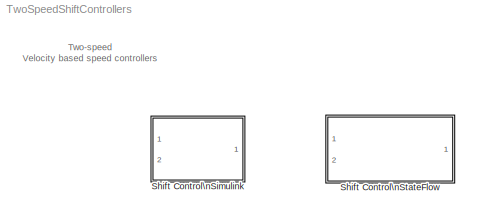
MODEL TwoSpeedShiftControllers
KIND model
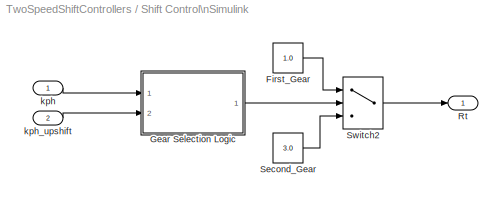
BLOCK [SubSystem] Shift Control\nSimulink
  Ports = [2, 1]
  RequestExecContextInheritance = off
  SID = 1
  Variant = off
BLOCK [Constant] Shift Control\nSimulink/First_Gear
  SID = 4
  Value = 1.0
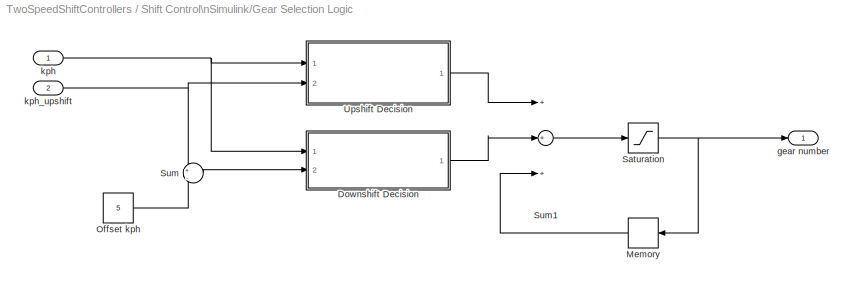
BLOCK [SubSystem] Shift Control\nSimulink/Gear Selection Logic
  Ports = [2, 1]
  RequestExecContextInheritance = off
  SID = 6
  Variant = off
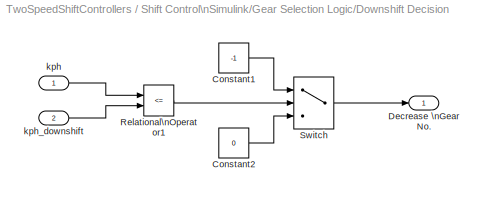
BLOCK [SubSystem] Shift Control\nSimulink/Gear Selection Logic/Downshift Decision
  Ports = [2, 1]
  RequestExecContextInheritance = off
  SID = 9
  Variant = off
BLOCK [Constant] Shift Control\nSimulink/Gear Selection Logic/Downshift Decision/Constant1
  SID = 12
  Value = -1
BLOCK [Constant] Shift Control\nSimulink/Gear Selection Logic/Downshift Decision/Constant2
  SID = 13
  Value = 0
BLOCK [Outport] Shift Control\nSimulink/Gear Selection Logic/Downshift Decision/Decrease \nGear No.
  IconDisplay = Port number
  SID = 16
BLOCK [RelationalOperator] Shift Control\nSimulink/Gear Selection Logic/Downshift Decision/Relational\nOperator1
  InputSameDT = off
  Operator = <=
  OutDataTypeStr = boolean
  Ports = [2, 1]
  SID = 14
BLOCK [Switch] Shift Control\nSimulink/Gear Selection Logic/Downshift Decision/Switch
  SID = 15
  Threshold = 0.5
BLOCK [Inport] Shift Control\nSimulink/Gear Selection Logic/Downshift Decision/kph
  IconDisplay = Port number
  SID = 10
BLOCK [Inport] Shift Control\nSimulink/Gear Selection Logic/Downshift Decision/kph_downshift
  IconDisplay = Port number
  Port = 2
  SID = 11
BLOCK [Memory] Shift Control\nSimulink/Gear Selection Logic/Memory
  SID = 17
BLOCK [Constant] Shift Control\nSimulink/Gear Selection Logic/Offset kph
  SID = 18
  Value = 5
BLOCK [Saturate] Shift Control\nSimulink/Gear Selection Logic/Saturation
  InputPortMap = u0
  LowerLimit = 1
  Ports = [1, 1]
  SID = 19
  UpperLimit = 2
BLOCK [Sum] Shift Control\nSimulink/Gear Selection Logic/Sum
  IconShape = round
  InputSameDT = off
  Inputs = +|-
  OutDataTypeStr = Inherit: Inherit via internal rule
  Ports = [2, 1]
  SID = 20
  SaturateOnIntegerOverflow = off
BLOCK [Sum] Shift Control\nSimulink/Gear Selection Logic/Sum1
  Inputs = +++
  Ports = [3, 1]
  SID = 21
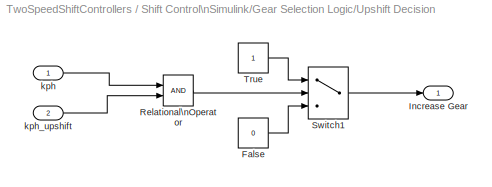
BLOCK [SubSystem] Shift Control\nSimulink/Gear Selection Logic/Upshift Decision
  Ports = [2, 1]
  RequestExecContextInheritance = off
  SID = 22
  Variant = off
BLOCK [Constant] Shift Control\nSimulink/Gear Selection Logic/Upshift Decision/False
  SID = 25
  Value = 0
BLOCK [Outport] Shift Control\nSimulink/Gear Selection Logic/Upshift Decision/Increase Gear
  IconDisplay = Port number
  SID = 29
BLOCK [RelationalOperator] Shift Control\nSimulink/Gear Selection Logic/Upshift Decision/Relational\nOperator
  InputSameDT = off
  OutDataTypeStr = boolean
  Ports = [2, 1]
  SID = 26
BLOCK [Switch] Shift Control\nSimulink/Gear Selection Logic/Upshift Decision/Switch1
  SID = 27
  Threshold = 0.5
BLOCK [Constant] Shift Control\nSimulink/Gear Selection Logic/Upshift Decision/True
  SID = 28
BLOCK [Inport] Shift Control\nSimulink/Gear Selection Logic/Upshift Decision/kph
  IconDisplay = Port number
  SID = 23
BLOCK [Inport] Shift Control\nSimulink/Gear Selection Logic/Upshift Decision/kph_upshift
  IconDisplay = Port number
  Port = 2
  SID = 24
BLOCK [Outport] Shift Control\nSimulink/Gear Selection Logic/gear number
  IconDisplay = Port number
  SID = 30
BLOCK [Inport] Shift Control\nSimulink/Gear Selection Logic/kph
  IconDisplay = Port number
  SID = 7
BLOCK [Inport] Shift Control\nSimulink/Gear Selection Logic/kph_upshift
  IconDisplay = Port number
  Port = 2
  SID = 8
BLOCK [Outport] Shift Control\nSimulink/Rt
  IconDisplay = Port number
  SID = 32
BLOCK [Constant] Shift Control\nSimulink/Second_Gear
  SID = 5
  Value = 3.0
BLOCK [Switch] Shift Control\nSimulink/Switch2
  SID = 31
  Threshold = 1.5
BLOCK [Inport] Shift Control\nSimulink/kph
  IconDisplay = Port number
  SID = 2
BLOCK [Inport] Shift Control\nSimulink/kph_upshift
  IconDisplay = Port number
  Port = 2
  SID = 3
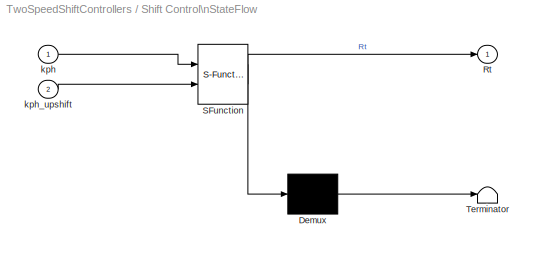
BLOCK [SubSystem] Shift Control\nStateFlow
  ErrorFcn = Stateflow.Translate.translate
  PermitHierarchicalResolution = ExplicitOnly
  Ports = [2, 1]
  RequestExecContextInheritance = off
  SFBlockType = Chart
  SID = 33
  TreatAsAtomicUnit = on
  Variant = off
BLOCK [Demux] Shift Control\nStateFlow/ Demux 
  Outputs = 1
  Ports = [1, 1]
  SID = 33::54
BLOCK [S-Function] Shift Control\nStateFlow/ SFunction 
  EnableBusSupport = off
  FunctionName = sf_sfun
  PortCounts = [2 2]
  Ports = [2, 2]
  SFunctionDeploymentMode = off
  SID = 33::53
  Tag = Stateflow S-Function TwoSpeedShiftControllers 1
BLOCK [Terminator] Shift Control\nStateFlow/ Terminator 
  SID = 33::55
BLOCK [Outport] Shift Control\nStateFlow/Rt
  IconDisplay = Port number
  SID = 33::50
BLOCK [Inport] Shift Control\nStateFlow/kph
  IconDisplay = Port number
  SID = 33::49
BLOCK [Inport] Shift Control\nStateFlow/kph_upshift
  IconDisplay = Port number
  Port = 2
  SID = 33::52
ANNOTATION (root): Two-speed\nVelocity based speed controllers
LINE Shift Control\nSimulink/First_Gear:1 -> Shift Control\nSimulink/Switch2:1
LINE Shift Control\nSimulink/Gear Selection Logic/Downshift Decision/Constant1:1 -> Shift Control\nSimulink/Gear Selection Logic/Downshift Decision/Switch:1
LINE Shift Control\nSimulink/Gear Selection Logic/Downshift Decision/Constant2:1 -> Shift Control\nSimulink/Gear Selection Logic/Downshift Decision/Switch:3
LINE Shift Control\nSimulink/Gear Selection Logic/Downshift Decision/Relational\nOperator1:1 -> Shift Control\nSimulink/Gear Selection Logic/Downshift Decision/Switch:2
LINE Shift Control\nSimulink/Gear Selection Logic/Downshift Decision/Switch:1 -> Shift Control\nSimulink/Gear Selection Logic/Downshift Decision/Decrease \nGear No.:1
LINE Shift Control\nSimulink/Gear Selection Logic/Downshift Decision/kph:1 -> Shift Control\nSimulink/Gear Selection Logic/Downshift Decision/Relational\nOperator1:1
LINE Shift Control\nSimulink/Gear Selection Logic/Downshift Decision/kph_downshift:1 -> Shift Control\nSimulink/Gear Selection Logic/Downshift Decision/Relational\nOperator1:2
LINE Shift Control\nSimulink/Gear Selection Logic/Downshift Decision:1 -> Shift Control\nSimulink/Gear Selection Logic/Sum1:2
LINE Shift Control\nSimulink/Gear Selection Logic/Memory:1 -> Shift Control\nSimulink/Gear Selection Logic/Sum1:3
LINE Shift Control\nSimulink/Gear Selection Logic/Offset kph:1 -> Shift Control\nSimulink/Gear Selection Logic/Sum:2
NET Shift Control\nSimulink/Gear Selection Logic/Saturation:1 -> Shift Control\nSimulink/Gear Selection Logic/Memory:1, Shift Control\nSimulink/Gear Selection Logic/gear number:1
LINE Shift Control\nSimulink/Gear Selection Logic/Sum1:1 -> Shift Control\nSimulink/Gear Selection Logic/Saturation:1
LINE Shift Control\nSimulink/Gear Selection Logic/Sum:1 -> Shift Control\nSimulink/Gear Selection Logic/Downshift Decision:2
LINE Shift Control\nSimulink/Gear Selection Logic/Upshift Decision/False:1 -> Shift Control\nSimulink/Gear Selection Logic/Upshift Decision/Switch1:3
LINE Shift Control\nSimulink/Gear Selection Logic/Upshift Decision/Relational\nOperator:1 -> Shift Control\nSimulink/Gear Selection Logic/Upshift Decision/Switch1:2
LINE Shift Control\nSimulink/Gear Selection Logic/Upshift Decision/Switch1:1 -> Shift Control\nSimulink/Gear Selection Logic/Upshift Decision/Increase Gear:1
LINE Shift Control\nSimulink/Gear Selection Logic/Upshift Decision/True:1 -> Shift Control\nSimulink/Gear Selection Logic/Upshift Decision/Switch1:1
LINE Shift Control\nSimulink/Gear Selection Logic/Upshift Decision/kph:1 -> Shift Control\nSimulink/Gear Selection Logic/Upshift Decision/Relational\nOperator:1
LINE Shift Control\nSimulink/Gear Selection Logic/Upshift Decision/kph_upshift:1 -> Shift Control\nSimulink/Gear Selection Logic/Upshift Decision/Relational\nOperator:2
LINE Shift Control\nSimulink/Gear Selection Logic/Upshift Decision:1 -> Shift Control\nSimulink/Gear Selection Logic/Sum1:1
NET Shift Control\nSimulink/Gear Selection Logic/kph:1 -> Shift Control\nSimulink/Gear Selection Logic/Downshift Decision:1, Shift Control\nSimulink/Gear Selection Logic/Upshift Decision:1
NET Shift Control\nSimulink/Gear Selection Logic/kph_upshift:1 -> Shift Control\nSimulink/Gear Selection Logic/Sum:1, Shift Control\nSimulink/Gear Selection Logic/Upshift Decision:2
LINE Shift Control\nSimulink/Gear Selection Logic:1 -> Shift Control\nSimulink/Switch2:2
LINE Shift Control\nSimulink/Second_Gear:1 -> Shift Control\nSimulink/Switch2:3
LINE Shift Control\nSimulink/Switch2:1 -> Shift Control\nSimulink/Rt:1
LINE Shift Control\nSimulink/kph:1 -> Shift Control\nSimulink/Gear Selection Logic:1
LINE Shift Control\nSimulink/kph_upshift:1 -> Shift Control\nSimulink/Gear Selection Logic:2
LINE Shift Control\nStateFlow/ Demux :1 -> Shift Control\nStateFlow/ Terminator :1
LINE Shift Control\nStateFlow/ SFunction :1 -> Shift Control\nStateFlow/ Demux :1
LINE Shift Control\nStateFlow/ SFunction :2 -> Shift Control\nStateFlow/Rt:1
LINE Shift Control\nStateFlow/kph:1 -> Shift Control\nStateFlow/ SFunction :1
LINE Shift Control\nStateFlow/kph_upshift:1 -> Shift Control\nStateFlow/ SFunction :2
note: NET lines group one-source signal fan-out (src -> all destinations, sorted); 1:1 wires keep LINE
CHART Shift Control\nStateFlow states=2 transitions=3
  STATE_LABEL 'first_gear\\nentry: Rt = 3.0;'
  STATE_LABEL 'second_gear\\nentry: Rt = 1.0;\\n'
